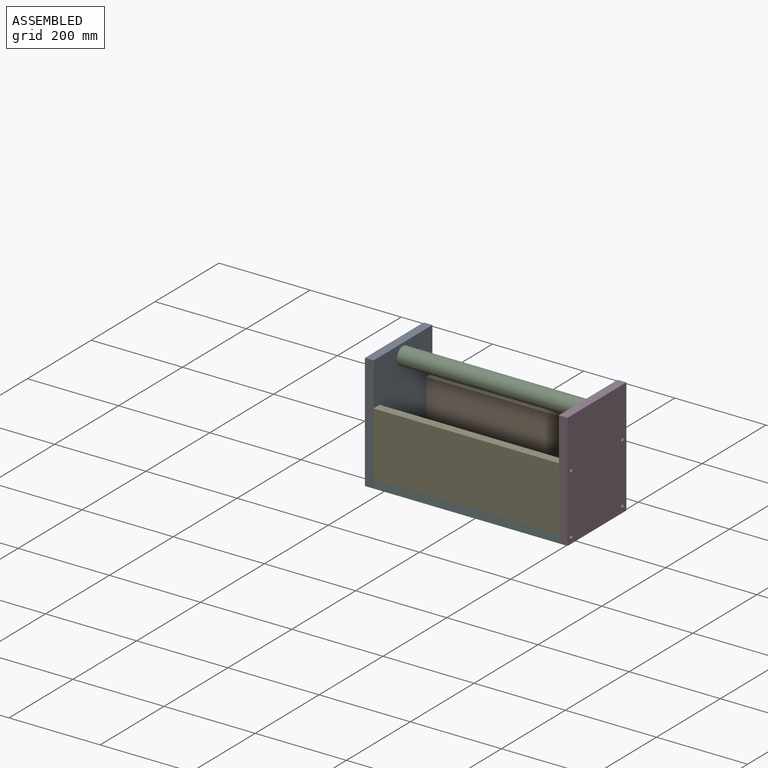
[diagram: assembled view]
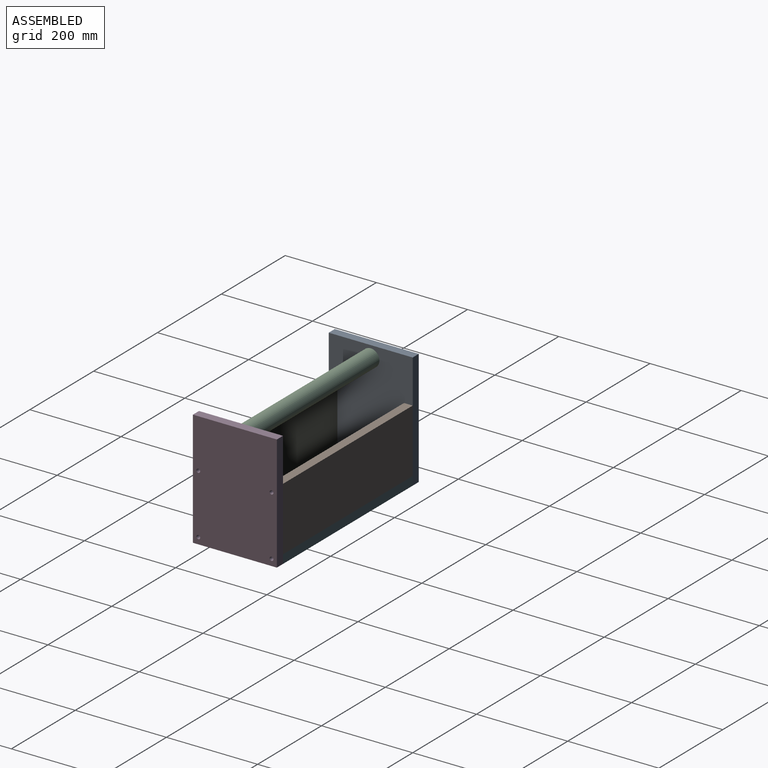
[diagram: assembled view, second angle]
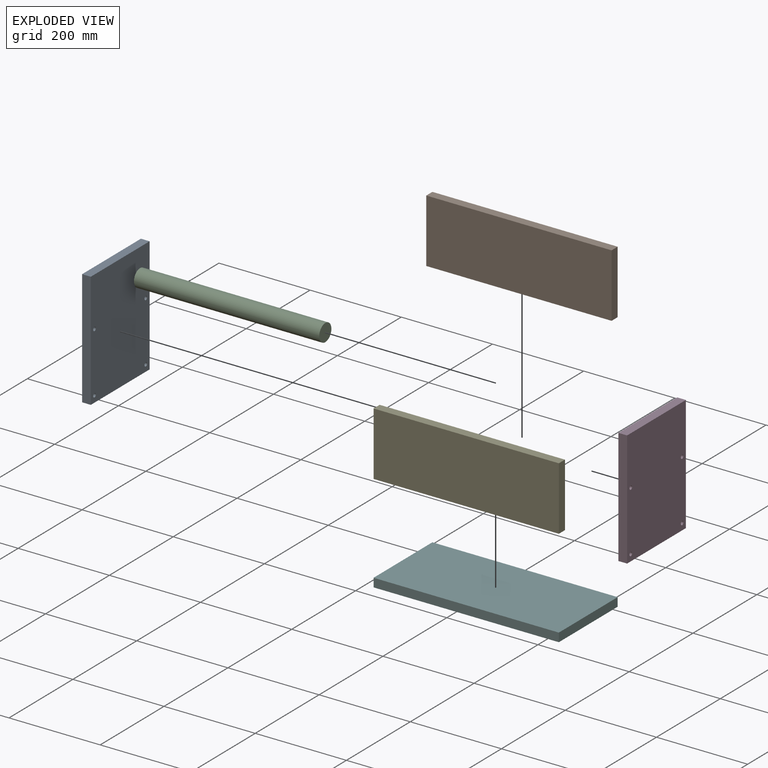
[diagram: exploded view]
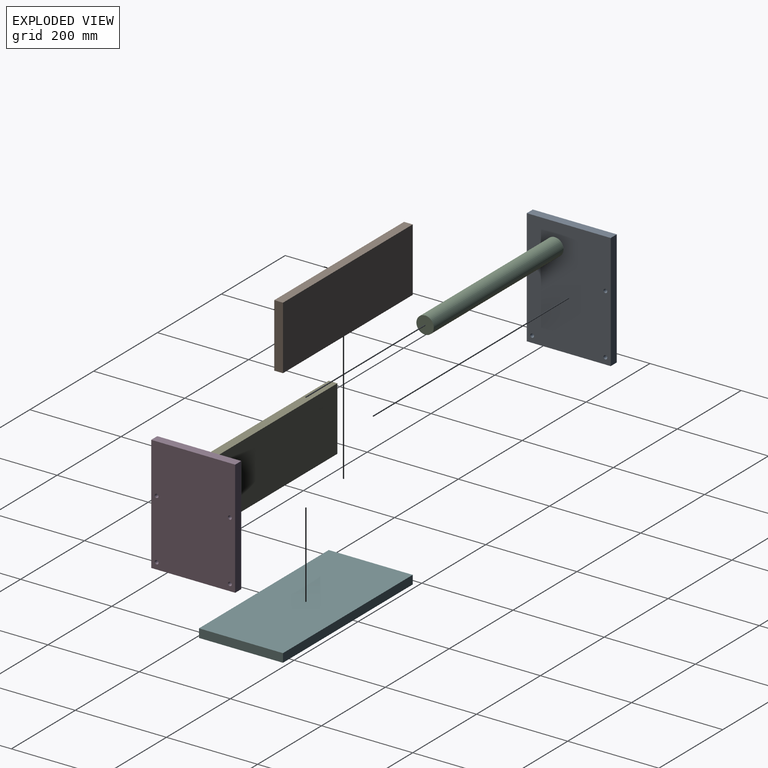
[diagram: exploded view, second angle]
ASSEMBLY  parts=6 mates=5
PART A: 12 faces, bbox 19.1x184.2x254 mm
  f0: plane 254x19.05mm, normal (0,1,0), area 4838.7mm2, adj f1,f6,f8,f9
  f1: plane 184.15x19.05mm, normal (0,0,1), area 3508.1mm2, adj f0,f2,f8,f9
  f2: plane 254x19.05mm, normal (0,-1,0), area 4838.7mm2, adj f1,f6,f8,f9
  f3: cylinder r=4.13mm len=19.05mm, axis (-1,0,0), area 494mm2, adj f8,f9
  f4: cylinder r=4.13mm len=19.05mm, axis (-1,0,0), area 494mm2, adj f8,f9
  f5: cylinder r=4.13mm len=19.05mm, axis (-1,0,0), area 494mm2, adj f8,f9
  f6: plane 184.15x19.05mm, normal (0,0,-1), area 3508.1mm2, adj f0,f2,f8,f9
  f7: cylinder r=4.13mm len=19.05mm, axis (-1,0,0), area 494mm2, adj f8,f9
  f8: plane 254x184.15mm, normal (1,0,0), area 45419.9mm2, adj f0,f1,f2,f3,f4,f5,f6,f7
  f9: plane 254x184.15mm, normal (-1,0,0), area 46560mm2, adj f0,f1,f2,f3,f4,f5,f6,f7
  f10: cylinder r=19.05mm len=38.1mm, axis (-1,0,0), area 0mm2, adj f8,f11
  f11: plane 38.1x38.1mm, normal (1,0,0), area 1140.1mm2, adj f10
PART B: 6 faces, bbox 19.1x406.4x139.7 mm
  f0: plane 139.7x19.05mm, normal (0,-1,0), area 2661.3mm2, adj f1,f3,f4,f5
  f1: plane 406.4x19.05mm, normal (0,0,-1), area 7741.9mm2, adj f0,f2,f4,f5
  f2: plane 139.7x19.05mm, normal (0,1,0), area 2661.3mm2, adj f1,f3,f4,f5
  f3: plane 406.4x19.05mm, normal (0,0,1), area 7741.9mm2, adj f0,f2,f4,f5
  f4: plane 406.4x139.7mm, normal (1,0,0), area 56774.1mm2, adj f0,f1,f2,f3
  f5: plane 406.4x139.7mm, normal (-1,0,0), area 56774.1mm2, adj f0,f1,f2,f3
PART C: 3 faces, bbox 406.4x38.1x38.1 mm
  f0: cylinder r=19.05mm len=406.4mm, axis (-1,0,0), area 48643.9mm2, adj f1,f2
  f1: plane 38.1x38.1mm, normal (1,0,0), area 1140.1mm2, adj f0
  f2: plane 38.1x38.1mm, normal (-1,0,0), area 1140.1mm2, adj f0
PART D: same geometry as A
PART E: same geometry as B
PART F: 6 faces, bbox 406.4x184.2x19.1 mm
  f0: plane 406.4x19.05mm, normal (0,1,0), area 7741.9mm2, adj f1,f3,f4,f5
  f1: plane 184.15x19.05mm, normal (-1,0,0), area 3508.1mm2, adj f0,f2,f4,f5
  f2: plane 406.4x19.05mm, normal (0,-1,0), area 7741.9mm2, adj f1,f3,f4,f5
  f3: plane 184.15x19.05mm, normal (1,0,0), area 3508.1mm2, adj f0,f2,f4,f5
  f4: plane 406.4x184.15mm, normal (0,0,1), area 74838.6mm2, adj f0,f1,f2,f3
  f5: plane 406.4x184.15mm, normal (0,0,-1), area 74838.6mm2, adj f0,f1,f2,f3
PLACE A t=(-190.61,-92.16,110.79)mm
PLACE B rot(axis=(0,0,1),90deg) t=(31.64,-19.13,72.69)mm
PLACE C rot(axis=(0,1,0),0deg) t=(-171.56,-92.16,212.39)mm
PLACE D rot(axis=(0,0,1),180deg) t=(253.89,-92.16,110.79)mm
PLACE E rot(axis=(0,0,-1),90deg) t=(31.64,-165.18,72.69)mm
PLACE F t=(31.64,-92.16,-16.21)mm
MATE fastened E.f1 <-> F.f4  axis (0,0,1) through (-171.56,-184.23,2.84)mm
MATE fastened C.f0 <-> D.f10  axis (1,0,0) through (234.84,-92.16,212.39)mm
MATE fastened A.f8 <-> F.f1  axis (1,0,0) through (-171.56,-184.23,-16.21)mm
MATE fastened B.f1 <-> F.f4  axis (0,0,-1) through (234.84,-0.08,2.84)mm
MATE fastened D.f8 <-> F.f3  axis (-1,0,0) through (234.84,-184.23,-16.21)mm
